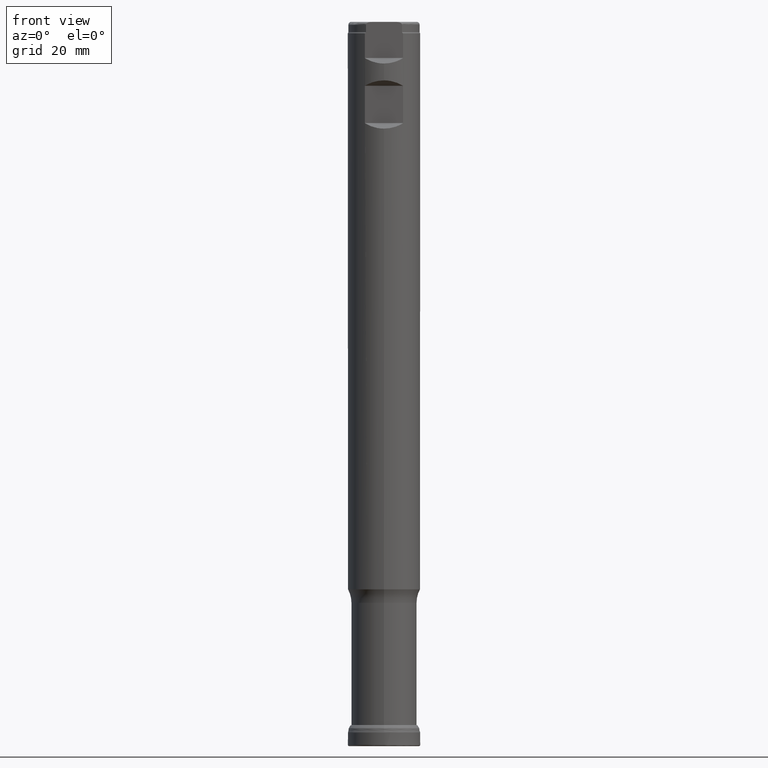
[diagram: clean part render]
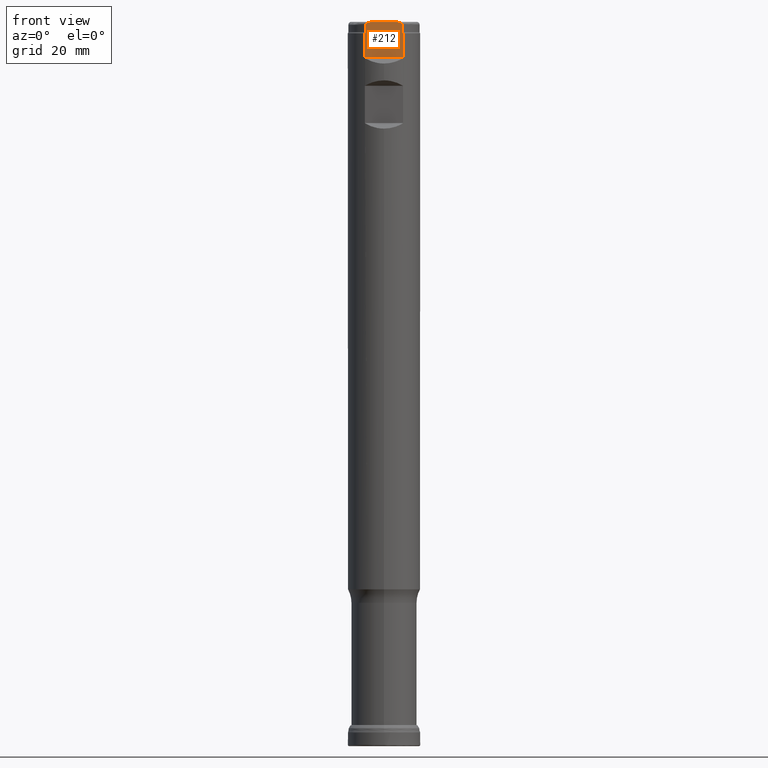
[diagram: same view with one face highlighted and labeled with its STEP entity id]
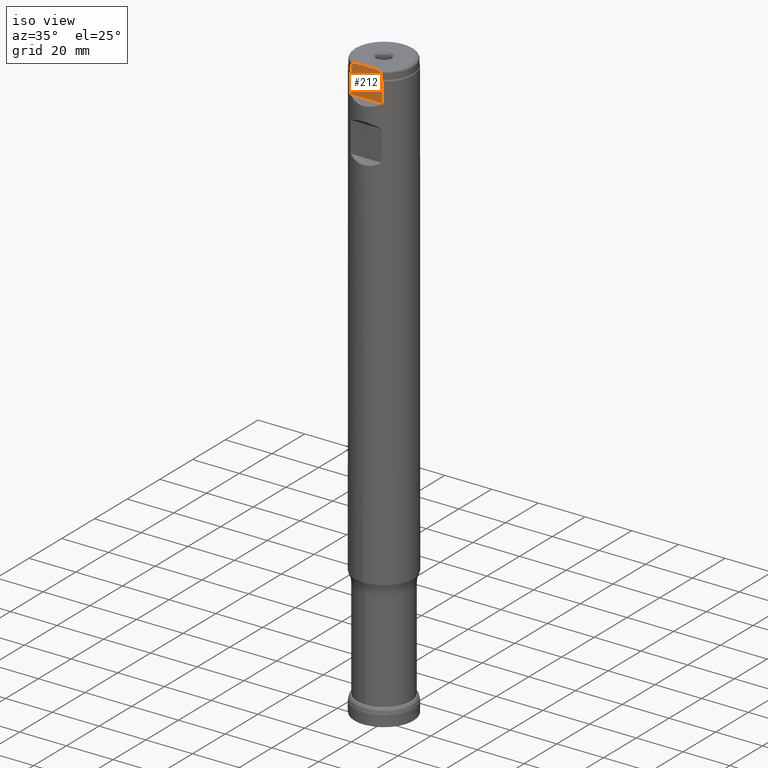
[diagram: same view with one face highlighted and labeled with its STEP entity id]
A machine part, front view. The second image highlights one B-rep face of the part: STEP entity #212.
A second angle (iso view) of the same face is appended — the face is thin or edge-on in the first view.
In plain terms, the highlighted planar face has unit normal (0, 1, -0).
Its self-contained STEP definition (entity closure, byte-faithful):
#164=FACE_OUTER_BOUND('',#408,.T.);
#212=ADVANCED_FACE('',(#164),#244,.F.);
#244=PLANE('',#857);
#249=LINE('',#1289,#268);
#250=LINE('',#1316,#269);
#251=LINE('',#1321,#270);
#254=LINE('',#1431,#273);
#255=LINE('',#1435,#274);
#256=LINE('',#1478,#275);
#268=VECTOR('',#892,1.);
#269=VECTOR('',#925,1.);
#270=VECTOR('',#928,1.);
#273=VECTOR('',#945,1.);
#274=VECTOR('',#948,1.);
#275=VECTOR('',#987,1.);
#408=EDGE_LOOP('',(#520,#521,#522,#523,#524,#525,#526,#527,#528,#529));
#520=ORIENTED_EDGE('',*,*,#667,.T.);
#521=ORIENTED_EDGE('',*,*,#695,.T.);
#522=ORIENTED_EDGE('',*,*,#669,.T.);
#523=ORIENTED_EDGE('',*,*,#682,.T.);
#524=ORIENTED_EDGE('',*,*,#687,.T.);
#525=ORIENTED_EDGE('',*,*,#689,.T.);
#526=ORIENTED_EDGE('',*,*,#656,.F.);
#527=ORIENTED_EDGE('',*,*,#688,.T.);
#528=ORIENTED_EDGE('',*,*,#685,.T.);
#529=ORIENTED_EDGE('',*,*,#683,.T.);
#595=VERTEX_POINT('',#1287);
#596=VERTEX_POINT('',#1288);
#607=VERTEX_POINT('',#1317);
#608=VERTEX_POINT('',#1318);
#609=VERTEX_POINT('',#1320);
#610=VERTEX_POINT('',#1322);
#622=VERTEX_POINT('',#1423);
#623=VERTEX_POINT('',#1428);
#624=VERTEX_POINT('',#1432);
#625=VERTEX_POINT('',#1434);
#656=EDGE_CURVE('',#596,#595,#249,.T.);
#667=EDGE_CURVE('',#607,#608,#250,.T.);
#669=EDGE_CURVE('',#610,#609,#251,.T.);
#682=EDGE_CURVE('',#609,#622,#791,.T.);
#683=EDGE_CURVE('',#623,#607,#792,.T.);
#685=EDGE_CURVE('',#624,#623,#254,.T.);
#687=EDGE_CURVE('',#622,#625,#255,.T.);
#688=EDGE_CURVE('',#596,#624,#793,.T.);
#689=EDGE_CURVE('',#625,#595,#794,.T.);
#695=EDGE_CURVE('',#608,#610,#256,.T.);
#791=B_SPLINE_CURVE_WITH_KNOTS('',3,(#1419,#1420,#1421,#1422),
 .UNSPECIFIED.,.F.,.F.,(4,4),(0.,1.),.UNSPECIFIED.);
#792=B_SPLINE_CURVE_WITH_KNOTS('',3,(#1424,#1425,#1426,#1427),
 .UNSPECIFIED.,.F.,.F.,(4,4),(0.,1.),.UNSPECIFIED.);
#793=B_SPLINE_CURVE_WITH_KNOTS('',3,(#1437,#1438,#1439,#1440,#1441,#1442,
#1443,#1444),.UNSPECIFIED.,.F.,.F.,(4,2,2,4),(0.,0.500000000000008,0.750000000000004,
1.),.UNSPECIFIED.);
#794=B_SPLINE_CURVE_WITH_KNOTS('',3,(#1445,#1446,#1447,#1448,#1449,#1450,
#1451,#1452),.UNSPECIFIED.,.F.,.F.,(4,2,2,4),(0.,0.25,0.5,1.),
 .UNSPECIFIED.);
#857=AXIS2_PLACEMENT_3D('',#1479,#988,#989);
#892=DIRECTION('',(1.,-1.37230767120917E-30,-1.17145536458252E-15));
#925=DIRECTION('',(0.,-1.17145536458252E-15,-1.));
#928=DIRECTION('',(0.,1.17145536458252E-15,1.));
#945=DIRECTION('',(0.,-1.17145536458252E-15,-1.));
#948=DIRECTION('',(0.,1.17145536458252E-15,1.));
#987=DIRECTION('',(1.,-1.37230767120917E-30,-1.17145536458252E-15));
#988=DIRECTION('',(0.,1.,-1.17145536458252E-15));
#989=DIRECTION('',(-1.17267306976032E-15,-1.17093834628434E-15,-1.));
#1287=CARTESIAN_POINT('',(3.96459014273691,-10.7949999999997,254.));
#1288=CARTESIAN_POINT('',(-3.96459014274939,-10.7949999999997,254.));
#1289=CARTESIAN_POINT('',(19.,-10.7949999999997,254.));
#1316=CARTESIAN_POINT('',(-6.69014013306148,-10.795,1.26458606606684E-14));
#1317=CARTESIAN_POINT('',(-6.69014013306148,-10.7949999999997,250.));
#1318=CARTESIAN_POINT('',(-6.69014013306148,-10.7949999999997,241.424264068712));
#1320=CARTESIAN_POINT('',(6.69014013306149,-10.7949999999997,250.));
#1321=CARTESIAN_POINT('',(6.69014013306148,-10.795,1.26458606606684E-14));
#1322=CARTESIAN_POINT('',(6.69014013306148,-10.7949999999997,241.424264068712));
#1419=CARTESIAN_POINT('',(6.69014013306149,-10.7949999999997,250.));
#1420=CARTESIAN_POINT('',(6.56213395392069,-10.7949999999997,250.116794678519));
#1421=CARTESIAN_POINT('',(6.43287534987465,-10.7949999999997,250.232313780549));
#1422=CARTESIAN_POINT('',(6.30221984700631,-10.7949999999997,250.346410161514));
#1423=CARTESIAN_POINT('',(6.30221984700629,-10.7949999999997,250.346410161514));
#1424=CARTESIAN_POINT('',(-6.3022198470063,-10.7949999999997,250.346410161514));
#1425=CARTESIAN_POINT('',(-6.4328926655807,-10.7949999999997,250.232298659414));
#1426=CARTESIAN_POINT('',(-6.56215030852008,-10.7949999999997,250.116779756347));
#1427=CARTESIAN_POINT('',(-6.69014013306149,-10.7949999999997,250.));
#1428=CARTESIAN_POINT('',(-6.30221984700629,-10.7949999999997,250.346410161514));
#1431=CARTESIAN_POINT('',(-6.30221984700629,-10.795,1.26458606606684E-14));
#1432=CARTESIAN_POINT('',(-6.30221984700629,-10.7949999999997,253.));
#1434=CARTESIAN_POINT('',(6.30221984700629,-10.7949999999997,253.));
#1435=CARTESIAN_POINT('',(6.30221984700629,-10.795,1.26458606606684E-14));
#1437=CARTESIAN_POINT('',(-3.96459014274939,-10.7949999999997,254.));
#1438=CARTESIAN_POINT('',(-4.42074173003042,-10.7949999999997,254.));
#1439=CARTESIAN_POINT('',(-4.87318840292045,-10.7949999999997,253.969142099305));
#1440=CARTESIAN_POINT('',(-5.53533403752103,-10.7949999999997,253.785225208593));
#1441=CARTESIAN_POINT('',(-5.75555843413989,-10.7949999999997,253.699874834573));
#1442=CARTESIAN_POINT('',(-6.13560345866924,-10.7949999999997,253.433188896451));
#1443=CARTESIAN_POINT('',(-6.30221984700631,-10.7949999999997,253.23301520881));
#1444=CARTESIAN_POINT('',(-6.30221984700631,-10.7949999999997,253.));
#1445=CARTESIAN_POINT('',(6.3022198470063,-10.7949999999997,253.));
#1446=CARTESIAN_POINT('',(6.30221984700631,-10.7949999999997,253.232144066045));
#1447=CARTESIAN_POINT('',(6.13620306695259,-10.7949999999997,253.432165283009));
#1448=CARTESIAN_POINT('',(5.75958150283017,-10.7949999999997,253.697647270543));
#1449=CARTESIAN_POINT('',(5.54206939074048,-10.7949999999997,253.782743883689));
#1450=CARTESIAN_POINT('',(4.88212460632211,-10.7949999999997,253.967850502028));
#1451=CARTESIAN_POINT('',(4.41959321491742,-10.7949999999997,254.000000000001));
#1452=CARTESIAN_POINT('',(3.9645901427369,-10.7949999999997,254.));
#1478=CARTESIAN_POINT('',(19.,-10.7949999999997,241.424264068712));
#1479=CARTESIAN_POINT('',(19.,-10.7949999999997,254.));